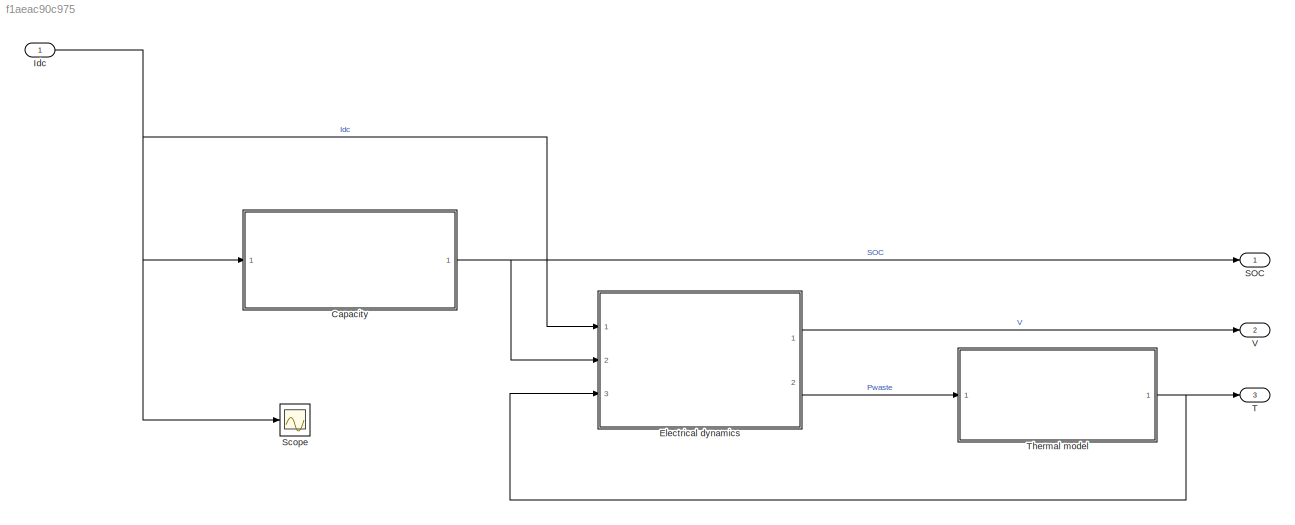
MODEL slx_f1aeac90c975
KIND model
WORKSPACE source: external: MAT-File  (data not in archive)
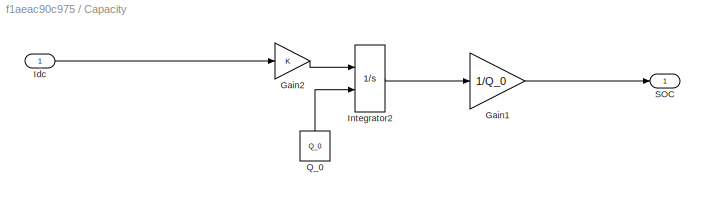
BLOCK [SubSystem] Capacity
  Ports = [1, 1]
  RequestExecContextInheritance = off
BLOCK [Gain] Capacity/Gain1
  Gain = 1/Q_0
  OutDataTypeStr = Inherit: Inherit via internal rule
  ParamDataTypeStr = Inherit: Inherit via internal rule
  SaturateOnIntegerOverflow = off
BLOCK [Gain] Capacity/Gain2
  OutDataTypeStr = Inherit: Inherit via internal rule
  ParamDataTypeStr = Inherit: Inherit via internal rule
  SaturateOnIntegerOverflow = off
BLOCK [Inport] Capacity/Idc
  IconDisplay = Port number
BLOCK [Integrator] Capacity/Integrator2
  InitialCondition = Vc0
  InitialConditionSource = external
  Ports = [2, 1]
BLOCK [Constant] Capacity/Q_0
  Value = Q_0
BLOCK [Outport] Capacity/SOC
  IconDisplay = Port number
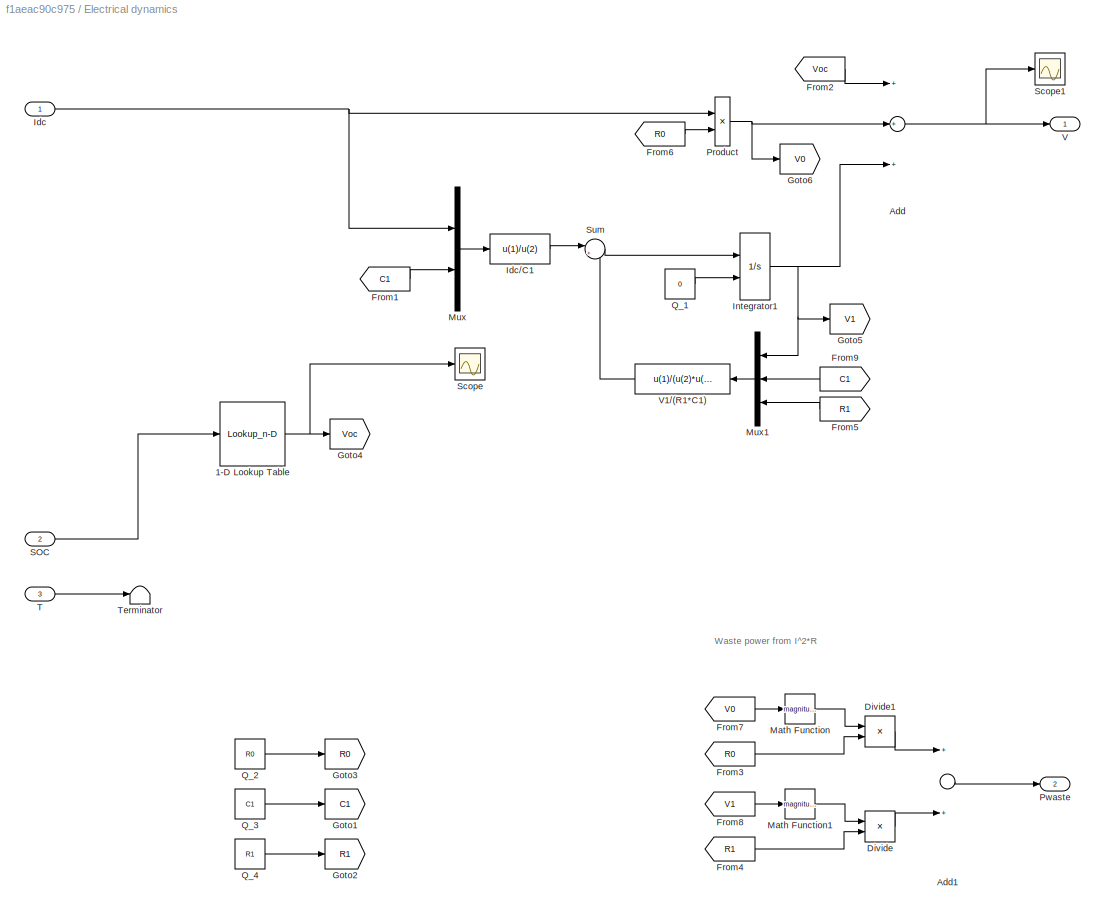
BLOCK [SubSystem] Electrical dynamics
  Ports = [3, 2]
  RequestExecContextInheritance = off
BLOCK [Lookup_n-D] Electrical dynamics/1-D Lookup Table
  BreakpointsForDimension1 = Voc.SOC
  IndexSearchMethod = Linear search
  InternalRulePriority = Speed
  NumberOfTableDimensions = 1
  Ports = [1, 1]
  RndMeth = Simplest
  Table = Voc.V
BLOCK [Sum] Electrical dynamics/Add
  InputSameDT = off
  Inputs = +++
  OutDataTypeStr = Inherit: Inherit via internal rule
  Ports = [3, 1]
  SaturateOnIntegerOverflow = off
BLOCK [Sum] Electrical dynamics/Add1
  InputSameDT = off
  OutDataTypeStr = Inherit: Inherit via internal rule
  Ports = [2, 1]
  SaturateOnIntegerOverflow = off
BLOCK [Product] Electrical dynamics/Divide
  InputSameDT = off
  Inputs = */
  OutDataTypeStr = Inherit: Inherit via internal rule
  Ports = [2, 1]
  RndMeth = Floor
  SaturateOnIntegerOverflow = off
BLOCK [Product] Electrical dynamics/Divide1
  InputSameDT = off
  Inputs = */
  OutDataTypeStr = Inherit: Inherit via internal rule
  Ports = [2, 1]
  RndMeth = Floor
  SaturateOnIntegerOverflow = off
BLOCK [From] Electrical dynamics/From1
  GotoTag = C1
BLOCK [From] Electrical dynamics/From2
  GotoTag = Voc
BLOCK [From] Electrical dynamics/From3
  GotoTag = R0
BLOCK [From] Electrical dynamics/From4
  GotoTag = R1
BLOCK [From] Electrical dynamics/From5
  GotoTag = R1
BLOCK [From] Electrical dynamics/From6
  GotoTag = R0
BLOCK [From] Electrical dynamics/From7
  GotoTag = V0
BLOCK [From] Electrical dynamics/From8
  GotoTag = V1
BLOCK [From] Electrical dynamics/From9
  GotoTag = C1
BLOCK [Goto] Electrical dynamics/Goto1
  GotoTag = C1
BLOCK [Goto] Electrical dynamics/Goto2
  GotoTag = R1
BLOCK [Goto] Electrical dynamics/Goto3
  GotoTag = R0
BLOCK [Goto] Electrical dynamics/Goto4
  GotoTag = Voc
BLOCK [Goto] Electrical dynamics/Goto5
  GotoTag = V1
BLOCK [Goto] Electrical dynamics/Goto6
  GotoTag = V0
BLOCK [Inport] Electrical dynamics/Idc
  IconDisplay = Port number
BLOCK [Fcn] Electrical dynamics/Idc//C1
  Expr = u(1)/u(2)
BLOCK [Integrator] Electrical dynamics/Integrator1
  InitialCondition = Vc0
  InitialConditionSource = external
  Ports = [2, 1]
BLOCK [Math] Electrical dynamics/Math Function
  Operator = magnitude^2
  Ports = [1, 1]
BLOCK [Math] Electrical dynamics/Math Function1
  Operator = magnitude^2
  Ports = [1, 1]
BLOCK [Mux] Electrical dynamics/Mux
  DisplayOption = bar
  Inputs = 2
  Ports = [2, 1]
BLOCK [Mux] Electrical dynamics/Mux1
  DisplayOption = bar
  Inputs = 3
  Ports = [3, 1]
BLOCK [Product] Electrical dynamics/Product
  InputSameDT = off
  OutDataTypeStr = Inherit: Inherit via internal rule
  Ports = [2, 1]
  SaturateOnIntegerOverflow = off
BLOCK [Outport] Electrical dynamics/Pwaste
  IconDisplay = Port number
  Port = 2
BLOCK [Constant] Electrical dynamics/Q_1
  Value = 0
BLOCK [Constant] Electrical dynamics/Q_2
  Value = R0
BLOCK [Constant] Electrical dynamics/Q_3
  Value = C1
BLOCK [Constant] Electrical dynamics/Q_4
  Value = R1
BLOCK [Inport] Electrical dynamics/SOC
  IconDisplay = Port number
  Port = 2
BLOCK [Scope] Electrical dynamics/Scope
  Floating = off
  NumInputPorts = 1
  Ports = [1]
  SaveName = ScopeData1
  ShowLegends = off
  YMax = 4.175
  YMin = 3.85
BLOCK [Scope] Electrical dynamics/Scope1
  Floating = off
  NumInputPorts = 1
  Ports = [1]
  SaveName = ScopeData2
  ShowLegends = off
  YMax = 8.5
  YMin = 3.5
BLOCK [Sum] Electrical dynamics/Sum
  IconShape = round
  InputSameDT = off
  Inputs = |+-
  OutDataTypeStr = Inherit: Inherit via internal rule
  Ports = [2, 1]
  SaturateOnIntegerOverflow = off
BLOCK [Inport] Electrical dynamics/T
  IconDisplay = Port number
  Port = 3
BLOCK [Terminator] Electrical dynamics/Terminator
BLOCK [Outport] Electrical dynamics/V
  IconDisplay = Port number
BLOCK [Fcn] Electrical dynamics/V1//(R1*C1)
  Expr = u(1)/(u(2)*u(3))
BLOCK [Inport] Idc
  IconDisplay = Port number
BLOCK [Outport] SOC
  IconDisplay = Port number
BLOCK [Scope] Scope
  Floating = off
  NumInputPorts = 1
  Ports = [1]
  ShowLegends = off
BLOCK [Outport] T
  IconDisplay = Port number
  Port = 3
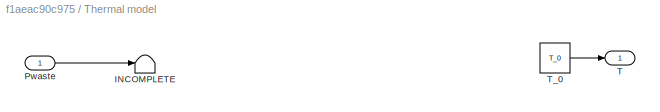
BLOCK [SubSystem] Thermal model
  Ports = [1, 1]
  RequestExecContextInheritance = off
BLOCK [Terminator] Thermal model/INCOMPLETE
BLOCK [Inport] Thermal model/Pwaste
  IconDisplay = Port number
BLOCK [Outport] Thermal model/T
  IconDisplay = Port number
BLOCK [Constant] Thermal model/T_0
  Value = T_0
BLOCK [Outport] V
  IconDisplay = Port number
  Port = 2
ANNOTATION Electrical dynamics: Waste power from I^2*R
LINE Capacity/Gain1:1 -> Capacity/SOC:1
LINE Capacity/Gain2:1 -> Capacity/Integrator2:1
LINE Capacity/Idc:1 -> Capacity/Gain2:1
LINE Capacity/Integrator2:1 -> Capacity/Gain1:1
LINE Capacity/Q_0:1 -> Capacity/Integrator2:2
NET Capacity:1 -> Electrical dynamics:2, SOC:1
NET Electrical dynamics/1-D Lookup Table:1 -> Electrical dynamics/Goto4:1, Electrical dynamics/Scope:1
LINE Electrical dynamics/Add1:1 -> Electrical dynamics/Pwaste:1
NET Electrical dynamics/Add:1 -> Electrical dynamics/Scope1:1, Electrical dynamics/V:1
LINE Electrical dynamics/Divide1:1 -> Electrical dynamics/Add1:1
LINE Electrical dynamics/Divide:1 -> Electrical dynamics/Add1:2
LINE Electrical dynamics/From1:1 -> Electrical dynamics/Mux:2
LINE Electrical dynamics/From2:1 -> Electrical dynamics/Add:1
LINE Electrical dynamics/From3:1 -> Electrical dynamics/Divide1:2
LINE Electrical dynamics/From4:1 -> Electrical dynamics/Divide:2
LINE Electrical dynamics/From5:1 -> Electrical dynamics/Mux1:3
LINE Electrical dynamics/From6:1 -> Electrical dynamics/Product:2
LINE Electrical dynamics/From7:1 -> Electrical dynamics/Math Function:1
LINE Electrical dynamics/From8:1 -> Electrical dynamics/Math Function1:1
LINE Electrical dynamics/From9:1 -> Electrical dynamics/Mux1:2
LINE Electrical dynamics/Idc//C1:1 -> Electrical dynamics/Sum:1
NET Electrical dynamics/Idc:1 -> Electrical dynamics/Mux:1, Electrical dynamics/Product:1
NET Electrical dynamics/Integrator1:1 -> Electrical dynamics/Add:3, Electrical dynamics/Goto5:1, Electrical dynamics/Mux1:1
LINE Electrical dynamics/Math Function1:1 -> Electrical dynamics/Divide:1
LINE Electrical dynamics/Math Function:1 -> Electrical dynamics/Divide1:1
LINE Electrical dynamics/Mux1:1 -> Electrical dynamics/V1//(R1*C1):1
LINE Electrical dynamics/Mux:1 -> Electrical dynamics/Idc//C1:1
NET Electrical dynamics/Product:1 -> Electrical dynamics/Add:2, Electrical dynamics/Goto6:1
LINE Electrical dynamics/Q_1:1 -> Electrical dynamics/Integrator1:2
LINE Electrical dynamics/Q_2:1 -> Electrical dynamics/Goto3:1
LINE Electrical dynamics/Q_3:1 -> Electrical dynamics/Goto1:1
LINE Electrical dynamics/Q_4:1 -> Electrical dynamics/Goto2:1
LINE Electrical dynamics/SOC:1 -> Electrical dynamics/1-D Lookup Table:1
LINE Electrical dynamics/Sum:1 -> Electrical dynamics/Integrator1:1
LINE Electrical dynamics/T:1 -> Electrical dynamics/Terminator:1
LINE Electrical dynamics/V1//(R1*C1):1 -> Electrical dynamics/Sum:2
LINE Electrical dynamics:1 -> V:1
LINE Electrical dynamics:2 -> Thermal model:1
NET Idc:1 -> Capacity:1, Electrical dynamics:1, Scope:1
LINE Thermal model/Pwaste:1 -> Thermal model/INCOMPLETE:1
LINE Thermal model/T_0:1 -> Thermal model/T:1
NET Thermal model:1 -> Electrical dynamics:3, T:1
note: NET lines group one-source signal fan-out (src -> all destinations, sorted); 1:1 wires keep LINE
